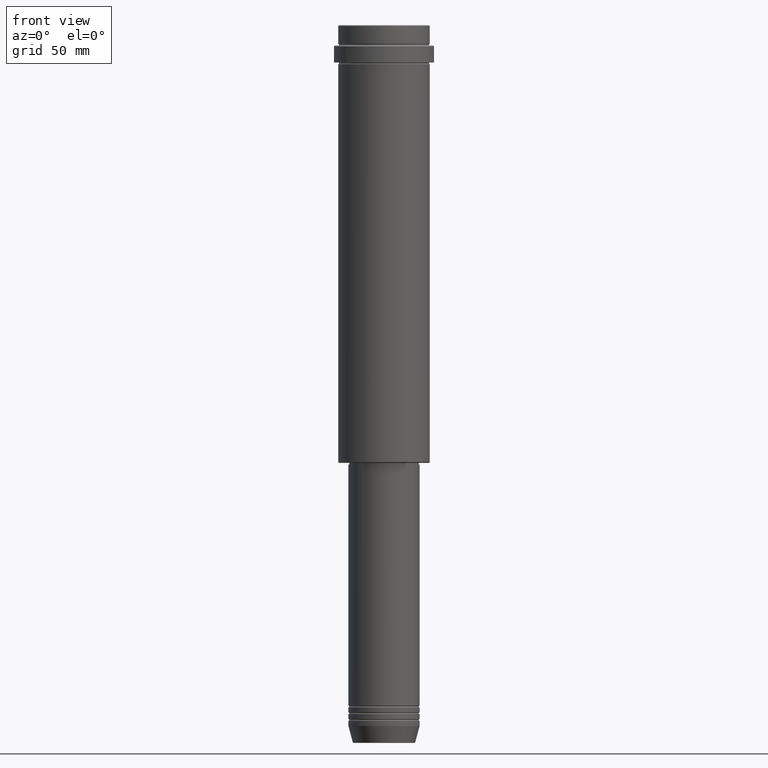
[diagram: clean part render]
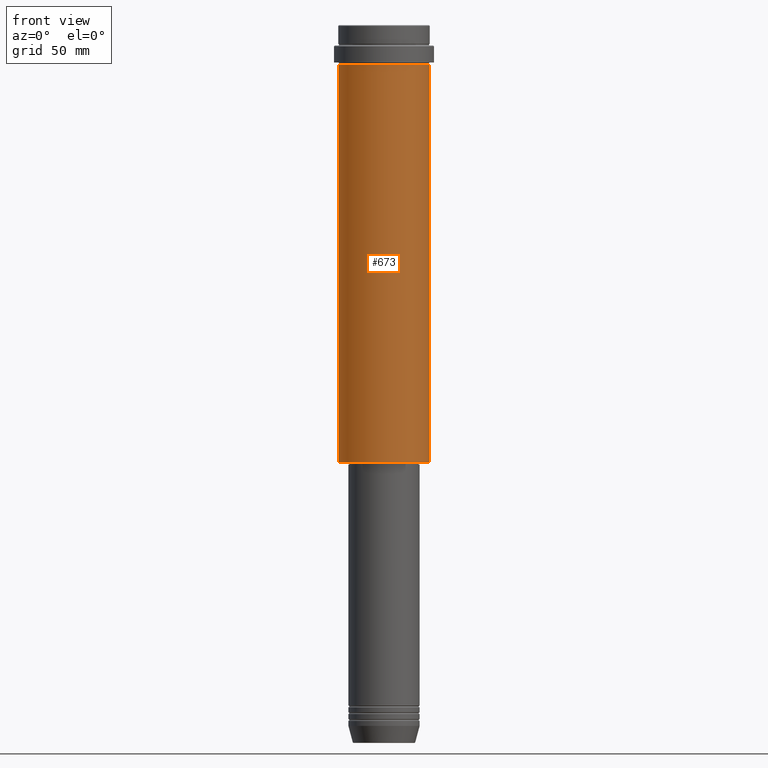
[diagram: same view with one face highlighted and labeled with its STEP entity id]
A machine part, front view. The second image highlights one B-rep face of the part: STEP entity #673.
In plain terms, the highlighted cylindrical surface (partial cylindrical patch) has radius 27 mm, axis along (-0, -0, 1).
Its self-contained STEP definition (entity closure, byte-faithful):
#8 = CARTESIAN_POINT ( 'NONE',  ( -27.00000000000000355, 3.306546357697854128E-15, -257.5000000000000568 ) ) ;
#53 = ORIENTED_EDGE ( 'NONE', *, *, #1352, .T. ) ;
#142 = CARTESIAN_POINT ( 'NONE',  ( -27.00000000000000355, 3.306546357697854128E-15, 0.000000000000000000 ) ) ;
#176 = CARTESIAN_POINT ( 'NONE',  ( 27.00000000000000355, 0.000000000000000000, 0.000000000000000000 ) ) ;
#207 = CIRCLE ( 'NONE', #554, 27.00000000000000355 ) ;
#215 = DIRECTION ( 'NONE',  ( 1.000000000000000000, 0.000000000000000000, 0.000000000000000000 ) ) ;
#217 = DIRECTION ( 'NONE',  ( 1.000000000000000000, 0.000000000000000000, 0.000000000000000000 ) ) ;
#276 = EDGE_CURVE ( 'NONE', #759, #997, #469, .T. ) ;
#302 = VERTEX_POINT ( 'NONE', #8 ) ;
#307 = CARTESIAN_POINT ( 'NONE',  ( 27.00000000000000355, 0.000000000000000000, -23.00000000000001421 ) ) ;
#321 = CARTESIAN_POINT ( 'NONE',  ( 0.000000000000000000, 0.000000000000000000, -257.5000000000000568 ) ) ;
#333 = CARTESIAN_POINT ( 'NONE',  ( 0.000000000000000000, 0.000000000000000000, 0.000000000000000000 ) ) ;
#376 = FACE_OUTER_BOUND ( 'NONE', #924, .T. ) ;
#390 = ORIENTED_EDGE ( 'NONE', *, *, #755, .T. ) ;
#469 = CIRCLE ( 'NONE', #819, 27.00000000000000355 ) ;
#471 = AXIS2_PLACEMENT_3D ( 'NONE', #333, #635, #215 ) ;
#554 = AXIS2_PLACEMENT_3D ( 'NONE', #321, #966, #1182 ) ;
#560 = VERTEX_POINT ( 'NONE', #564 ) ;
#564 = CARTESIAN_POINT ( 'NONE',  ( 27.00000000000000355, 0.000000000000000000, -257.5000000000000568 ) ) ;
#567 = LINE ( 'NONE', #176, #1398 ) ;
#635 = DIRECTION ( 'NONE',  ( -0.000000000000000000, -0.000000000000000000, 1.000000000000000000 ) ) ;
#647 = VECTOR ( 'NONE', #1014, 1000.000000000000000 ) ;
#673 = ADVANCED_FACE ( 'NONE', ( #376 ), #813, .T. ) ;
#685 = CARTESIAN_POINT ( 'NONE',  ( 0.000000000000000000, 0.000000000000000000, -23.00000000000001421 ) ) ;
#700 = EDGE_CURVE ( 'NONE', #302, #759, #897, .T. ) ;
#755 = EDGE_CURVE ( 'NONE', #560, #997, #567, .T. ) ;
#759 = VERTEX_POINT ( 'NONE', #796 ) ;
#796 = CARTESIAN_POINT ( 'NONE',  ( -27.00000000000000355, 3.306546357697854128E-15, -23.00000000000001421 ) ) ;
#813 = CYLINDRICAL_SURFACE ( 'NONE', #471, 27.00000000000000355 ) ;
#819 = AXIS2_PLACEMENT_3D ( 'NONE', #685, #1135, #217 ) ;
#897 = LINE ( 'NONE', #142, #647 ) ;
#898 = DIRECTION ( 'NONE',  ( -0.000000000000000000, -0.000000000000000000, 1.000000000000000000 ) ) ;
#924 = EDGE_LOOP ( 'NONE', ( #1106, #53, #390, #1085 ) ) ;
#966 = DIRECTION ( 'NONE',  ( -0.000000000000000000, -0.000000000000000000, 1.000000000000000000 ) ) ;
#997 = VERTEX_POINT ( 'NONE', #307 ) ;
#1014 = DIRECTION ( 'NONE',  ( -0.000000000000000000, -0.000000000000000000, 1.000000000000000000 ) ) ;
#1085 = ORIENTED_EDGE ( 'NONE', *, *, #276, .F. ) ;
#1106 = ORIENTED_EDGE ( 'NONE', *, *, #700, .F. ) ;
#1135 = DIRECTION ( 'NONE',  ( -0.000000000000000000, -0.000000000000000000, 1.000000000000000000 ) ) ;
#1182 = DIRECTION ( 'NONE',  ( -1.000000000000000000, 0.000000000000000000, 0.000000000000000000 ) ) ;
#1352 = EDGE_CURVE ( 'NONE', #302, #560, #207, .T. ) ;
#1398 = VECTOR ( 'NONE', #898, 1000.000000000000000 ) ;